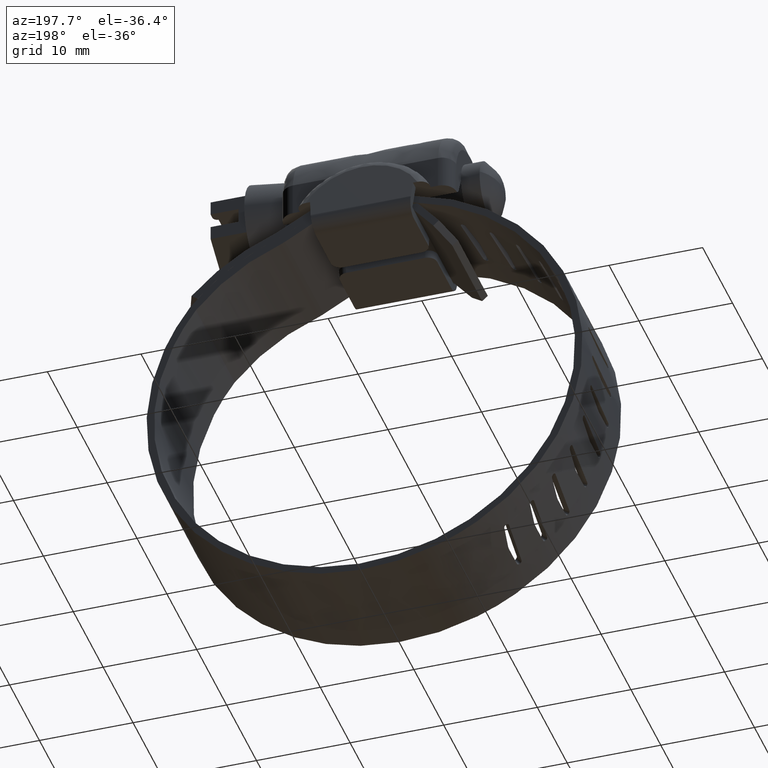
[diagram: clean part render]
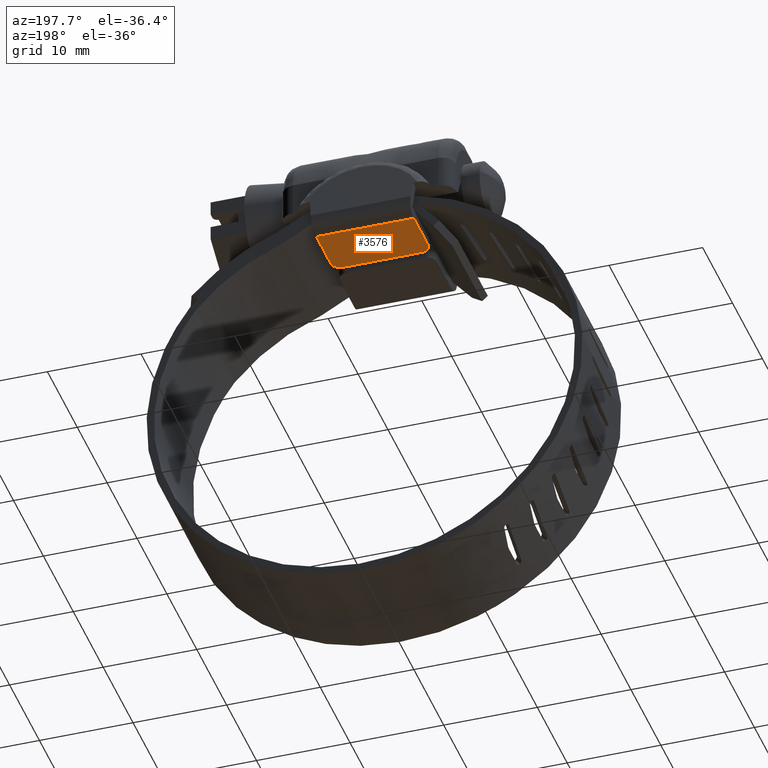
[diagram: same view with one face highlighted and labeled with its STEP entity id]
A machine part, auxiliary view. The second image highlights one B-rep face of the part: STEP entity #3576.
In plain terms, the highlighted face is a freeform B-spline surface patch.
Its self-contained STEP definition (entity closure, byte-faithful):
#1484=CARTESIAN_POINT('',(-5.200000000000000,6.325492857920280,9.477083000000221));
#1485=VERTEX_POINT('',#1484);
#1505=CARTESIAN_POINT('',(5.200000000000100,6.325492857920280,9.477083000000221));
#1506=VERTEX_POINT('',#1505);
#1520=CARTESIAN_POINT('',(-5.200000000000000,6.325492857920280,9.477083000000221));
#1521=CARTESIAN_POINT('',(5.200000000000100,6.325492857920280,9.477083000000221));
#1522=QUASI_UNIFORM_CURVE('',1,(#1520,#1521),.UNSPECIFIED.,.F.,.U.);
#1523=EDGE_CURVE('',#1485,#1506,#1522,.T.);
#2112=CARTESIAN_POINT('',(-4.196533785100645,0.500000000000056,9.477083000000221));
#2113=VERTEX_POINT('',#2112);
#2114=CARTESIAN_POINT('',(-5.200000000000000,1.500000000000055,9.477083000000221));
#2115=VERTEX_POINT('',#2114);
#2116=CARTESIAN_POINT('',(-4.196533785100645,0.500000000000056,9.477083000000221));
#2117=CARTESIAN_POINT('',(-4.319483268517102,0.499671836285245,9.477083000000224));
#2118=CARTESIAN_POINT('',(-4.548973237762836,0.542111340175053,9.477083000000219));
#2119=CARTESIAN_POINT('',(-4.836132907579274,0.708802782862053,9.477083000000224));
#2120=CARTESIAN_POINT('',(-5.042397335899858,0.935582093129127,9.477083000000231));
#2121=CARTESIAN_POINT('',(-5.170333772383633,1.205021401731449,9.477083000000203));
#2122=CARTESIAN_POINT('',(-5.199885625655947,1.401646033613165,9.477083000000226));
#2123=CARTESIAN_POINT('',(-5.200000000000000,1.500000000000055,9.477083000000221));
#2124=B_SPLINE_CURVE_WITH_KNOTS('',3,(#2116,#2117,#2118,#2119,#2120,#2121,#2122,#2123),.UNSPECIFIED.,.F.,.U.,(4,1,1,1,1,4),(0.000000123222208,0.368817802404855,0.688465650577272,0.983513342477312,1.278572084275389,1.573625983405330),.UNSPECIFIED.);
#2125=EDGE_CURVE('',#2113,#2115,#2124,.T.);
#2243=CARTESIAN_POINT('',(4.196533785100741,0.500000000000056,9.477083000000221));
#2244=VERTEX_POINT('',#2243);
#2250=CARTESIAN_POINT('',(5.200000000000100,1.500000000000055,9.477083000000221));
#2251=VERTEX_POINT('',#2250);
#2252=CARTESIAN_POINT('',(5.200000000000100,1.500000000000055,9.477083000000221));
#2253=CARTESIAN_POINT('',(5.199877765179378,1.377056632351572,9.477083000000226));
#2254=CARTESIAN_POINT('',(5.162725116992526,1.180526793422330,9.477083000000228));
#2255=CARTESIAN_POINT('',(5.044568160449334,0.953863725479780,9.477083000000208));
#2256=CARTESIAN_POINT('',(4.905508342092995,0.780702763056065,9.477083000000230));
#2257=CARTESIAN_POINT('',(4.724479298816232,0.636322828335633,9.477083000000246));
#2258=CARTESIAN_POINT('',(4.475194515652934,0.526315692650097,9.477083000000206));
#2259=CARTESIAN_POINT('',(4.294876467080083,0.499809889461415,9.477083000000263));
#2260=CARTESIAN_POINT('',(4.196533785100741,0.500000000000056,9.477083000000221));
#2261=B_SPLINE_CURVE_WITH_KNOTS('',3,(#2252,#2253,#2254,#2255,#2256,#2257,#2258,#2259,#2260),.UNSPECIFIED.,.F.,.U.,(4,1,1,1,1,1,4),(0.000000123027830,0.368786985765099,0.590063981556441,0.762178695761621,1.032595649542234,1.278465249301090,1.573494496162655),.UNSPECIFIED.);
#2262=EDGE_CURVE('',#2251,#2244,#2261,.T.);
#2283=CARTESIAN_POINT('',(-4.196533785100645,0.500000000000056,9.477083000000221));
#2284=CARTESIAN_POINT('',(4.196533785100741,0.500000000000056,9.477083000000221));
#2285=QUASI_UNIFORM_CURVE('',1,(#2283,#2284),.UNSPECIFIED.,.F.,.U.);
#2286=EDGE_CURVE('',#2113,#2244,#2285,.T.);
#3555=CARTESIAN_POINT('',(-5.719479747431165,0.209016643037876,9.477083000000221));
#3556=CARTESIAN_POINT('',(5.719479468481527,0.209016643037876,9.477083000000221));
#3557=CARTESIAN_POINT('',(-5.719479747431165,6.616476371134355,9.477083000000221));
#3558=CARTESIAN_POINT('',(5.719479468481527,6.616476371134355,9.477083000000221));
#3559=B_SPLINE_SURFACE_WITH_KNOTS('',1,1,((#3555,#3557),(#3556,#3558)),.UNSPECIFIED.,.F.,.F.,.U.,(2,2),(2,2),(0.0,11.438959215912689),(0.0,6.407459728096479),.UNSPECIFIED.);
#3560=CARTESIAN_POINT('',(-5.200000000000000,1.500000000000055,9.477083000000221));
#3561=CARTESIAN_POINT('',(-5.200000000000000,6.325492857920280,9.477083000000221));
#3562=QUASI_UNIFORM_CURVE('',1,(#3560,#3561),.UNSPECIFIED.,.F.,.U.);
#3563=EDGE_CURVE('',#2115,#1485,#3562,.T.);
#3564=ORIENTED_EDGE('',*,*,#3563,.T.);
#3565=ORIENTED_EDGE('',*,*,#1523,.T.);
#3566=CARTESIAN_POINT('',(5.200000000000100,1.500000000000055,9.477083000000221));
#3567=CARTESIAN_POINT('',(5.200000000000100,6.325492857920280,9.477083000000221));
#3568=QUASI_UNIFORM_CURVE('',1,(#3566,#3567),.UNSPECIFIED.,.F.,.U.);
#3569=EDGE_CURVE('',#2251,#1506,#3568,.T.);
#3570=ORIENTED_EDGE('',*,*,#3569,.F.);
#3571=ORIENTED_EDGE('',*,*,#2262,.T.);
#3572=ORIENTED_EDGE('',*,*,#2286,.F.);
#3573=ORIENTED_EDGE('',*,*,#2125,.T.);
#3574=EDGE_LOOP('',(#3564,#3565,#3570,#3571,#3572,#3573));
#3575=FACE_OUTER_BOUND('',#3574,.T.);
#3576=ADVANCED_FACE('',(#3575),#3559,.F.);